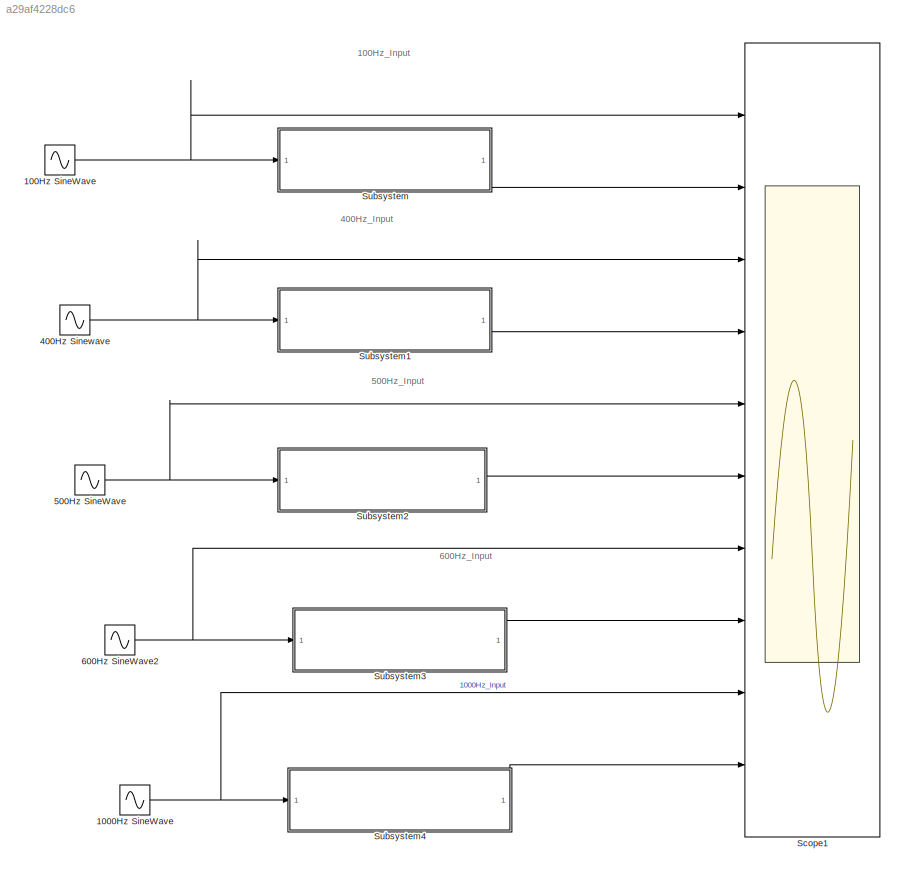
MODEL slx_a29af4228dc6
KIND model
CONFIG AbsTol = auto
CONFIG EnableMultiTasking = off
CONFIG FixedStep = auto
CONFIG MaxStep = auto
CONFIG MinStep = auto
CONFIG RelTol = 1e-3
CONFIG SampleTimeConstraint = Unconstrained
CONFIG SolverName = VariableStepAuto
CONFIG StartTime = 0.0
CONFIG StopTime = 0.05
BLOCK [Sin] 1000Hz SineWave
  Frequency = 2*pi*1000
  Ports = [0, 1]
  SampleTime = 0
BLOCK [Sin] 100Hz SineWave
  Frequency = 2*pi*100
  Ports = [0, 1]
  SampleTime = 0
BLOCK [Sin] 400Hz Sinewave
  Frequency = 2*pi*400
  Ports = [0, 1]
  SampleTime = 0
BLOCK [Sin] 500Hz SineWave
  Frequency = 2*pi*500
  Ports = [0, 1]
  SampleTime = 0
BLOCK [Sin] 600Hz SineWave2
  Frequency = 2*pi*600
  Ports = [0, 1]
  SampleTime = 0
BLOCK [Scope] Scope1
  Floating = off
  NumInputPorts = 10
  Ports = [10]
  ScopeSpecificationString = Simulink.scopes.TimeScopeBlockCfg('CurrentConfiguration', extmgr.ConfigurationSet(extmgr.Configuration('Core','General UI',true,'DisplayFullSourceName',true),extmgr.Configuration('Core','Source UI',true),extmgr.Configuration('Sources','WiredSimulink',true),extmgr.Configuration('Visuals','Time Domain',true,'SerializedDisplays',{struct('MinYLimReal','-1.24992','MaxYLimReal','1.24992','YLabelReal',''...<+8995ch>
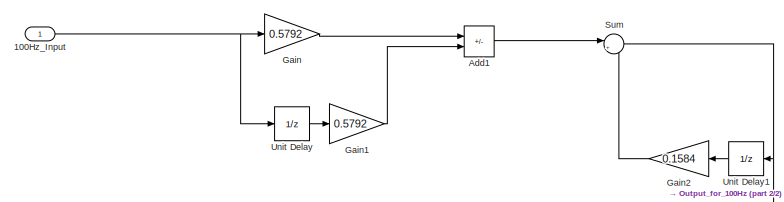
[diagram: Subsystem - part 1/2, top left region]
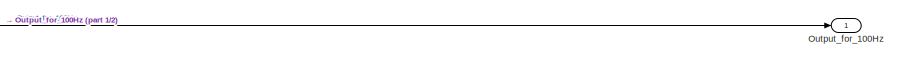
[diagram: Subsystem - part 2/2, bottom right region]
BLOCK [SubSystem] Subsystem
  Ports = [1, 1]
  RequestExecContextInheritance = off
BLOCK [Inport] Subsystem/100Hz_Input
BLOCK [Sum] Subsystem/Add1
  IconShape = rectangular
  Inputs = +-
  Ports = [2, 1]
BLOCK [Gain] Subsystem/Gain
  Gain = 0.5792
BLOCK [Gain] Subsystem/Gain1
  Gain = 0.5792
BLOCK [Gain] Subsystem/Gain2
  Gain = 0.1584
  NameLocation = top
BLOCK [Outport] Subsystem/Output_for_100Hz
BLOCK [Sum] Subsystem/Sum
  Inputs = |++
  Ports = [2, 1]
BLOCK [UnitDelay] Subsystem/Unit Delay
  HasFrameUpgradeWarning = on
  SampleTime = -1
BLOCK [UnitDelay] Subsystem/Unit Delay1
  HasFrameUpgradeWarning = on
  NameLocation = top
  SampleTime = -1
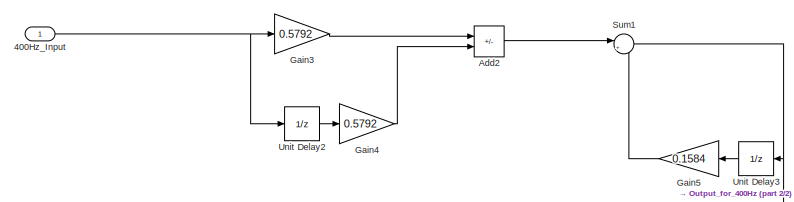
[diagram: Subsystem1 - part 1/2, middle left region]
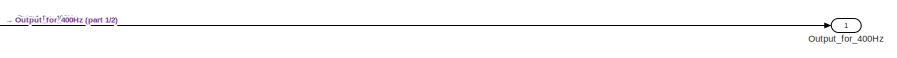
[diagram: Subsystem1 - part 2/2, bottom right region]
BLOCK [SubSystem] Subsystem1
  Ports = [1, 1]
  RequestExecContextInheritance = off
BLOCK [Inport] Subsystem1/400Hz_Input
BLOCK [Sum] Subsystem1/Add2
  IconShape = rectangular
  Inputs = +-
  Ports = [2, 1]
BLOCK [Gain] Subsystem1/Gain3
  Gain = 0.5792
BLOCK [Gain] Subsystem1/Gain4
  Gain = 0.5792
BLOCK [Gain] Subsystem1/Gain5
  Gain = 0.1584
  NameLocation = top
BLOCK [Outport] Subsystem1/Output_for_400Hz
BLOCK [Sum] Subsystem1/Sum1
  Inputs = |++
  Ports = [2, 1]
BLOCK [UnitDelay] Subsystem1/Unit Delay2
  HasFrameUpgradeWarning = on
  SampleTime = -1
BLOCK [UnitDelay] Subsystem1/Unit Delay3
  HasFrameUpgradeWarning = on
  NameLocation = top
  SampleTime = -1
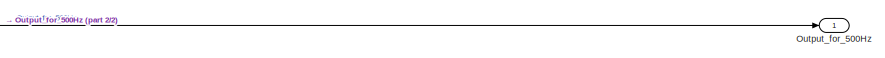
[diagram: Subsystem2 - part 1/2, top right region]
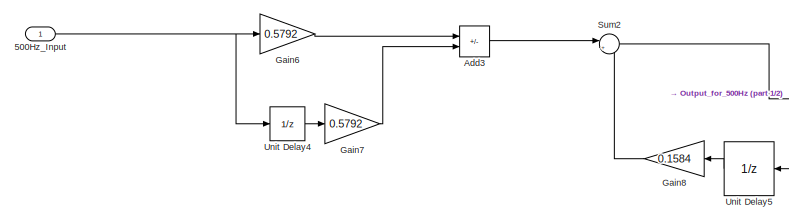
[diagram: Subsystem2 - part 2/2, left side, full height]
BLOCK [SubSystem] Subsystem2
  Ports = [1, 1]
  RequestExecContextInheritance = off
BLOCK [Inport] Subsystem2/500Hz_Input
BLOCK [Sum] Subsystem2/Add3
  IconShape = rectangular
  Inputs = +-
  Ports = [2, 1]
BLOCK [Gain] Subsystem2/Gain6
  Gain = 0.5792
BLOCK [Gain] Subsystem2/Gain7
  Gain = 0.5792
BLOCK [Gain] Subsystem2/Gain8
  Gain = 0.1584
  NameLocation = top
BLOCK [Outport] Subsystem2/Output_for_500Hz
BLOCK [Sum] Subsystem2/Sum2
  Inputs = |++
  Ports = [2, 1]
BLOCK [UnitDelay] Subsystem2/Unit Delay4
  HasFrameUpgradeWarning = on
  SampleTime = -1
BLOCK [UnitDelay] Subsystem2/Unit Delay5
  HasFrameUpgradeWarning = on
  NameLocation = top
  SampleTime = -1
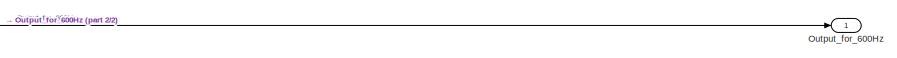
[diagram: Subsystem3 - part 1/2, top right region]
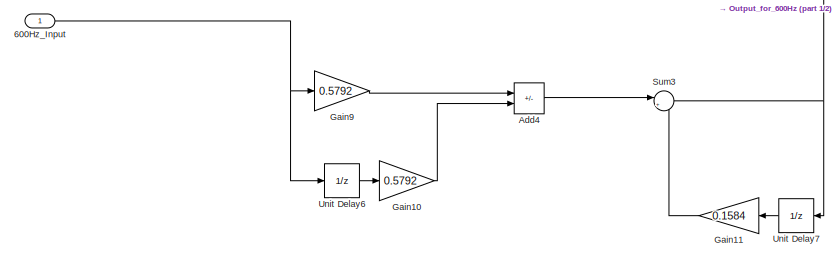
[diagram: Subsystem3 - part 2/2, bottom left region]
BLOCK [SubSystem] Subsystem3
  Ports = [1, 1]
  RequestExecContextInheritance = off
BLOCK [Inport] Subsystem3/600Hz_Input
BLOCK [Sum] Subsystem3/Add4
  IconShape = rectangular
  Inputs = +-
  Ports = [2, 1]
BLOCK [Gain] Subsystem3/Gain10
  Gain = 0.5792
BLOCK [Gain] Subsystem3/Gain11
  Gain = 0.1584
  NameLocation = top
BLOCK [Gain] Subsystem3/Gain9
  Gain = 0.5792
BLOCK [Outport] Subsystem3/Output_for_600Hz
BLOCK [Sum] Subsystem3/Sum3
  Inputs = |++
  Ports = [2, 1]
BLOCK [UnitDelay] Subsystem3/Unit Delay6
  HasFrameUpgradeWarning = on
  SampleTime = -1
BLOCK [UnitDelay] Subsystem3/Unit Delay7
  HasFrameUpgradeWarning = on
  NameLocation = top
  SampleTime = -1
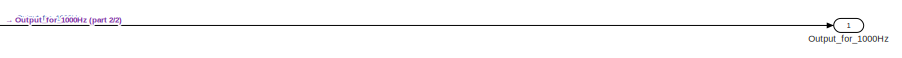
[diagram: Subsystem4 - part 1/2, top right region]
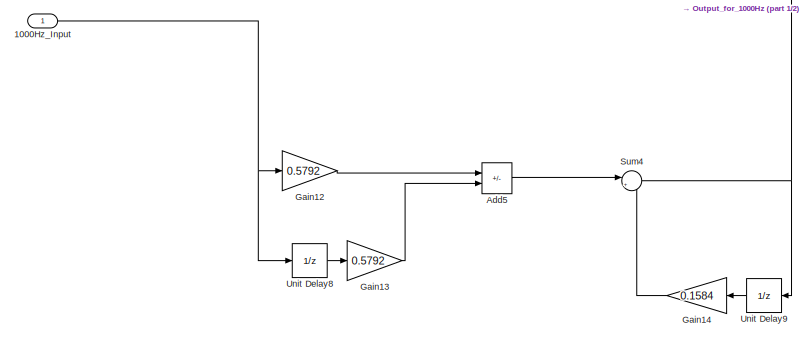
[diagram: Subsystem4 - part 2/2, bottom left region]
BLOCK [SubSystem] Subsystem4
  Ports = [1, 1]
  RequestExecContextInheritance = off
BLOCK [Inport] Subsystem4/1000Hz_Input
BLOCK [Sum] Subsystem4/Add5
  IconShape = rectangular
  Inputs = +-
  Ports = [2, 1]
BLOCK [Gain] Subsystem4/Gain12
  Gain = 0.5792
BLOCK [Gain] Subsystem4/Gain13
  Gain = 0.5792
BLOCK [Gain] Subsystem4/Gain14
  Gain = 0.1584
  NameLocation = top
BLOCK [Outport] Subsystem4/Output_for_1000Hz
BLOCK [Sum] Subsystem4/Sum4
  Inputs = |++
  Ports = [2, 1]
BLOCK [UnitDelay] Subsystem4/Unit Delay8
  HasFrameUpgradeWarning = on
  SampleTime = -1
BLOCK [UnitDelay] Subsystem4/Unit Delay9
  HasFrameUpgradeWarning = on
  NameLocation = top
  SampleTime = -1
ANNOTATION (root): 100Hz_Input
ANNOTATION (root): 400Hz_Input
ANNOTATION (root): 500Hz_Input
ANNOTATION (root): 600Hz_Input
NET 1000Hz SineWave:1 -> Scope1:9, Subsystem4:1
NET 100Hz SineWave:1 -> Scope1:1, Subsystem:1
NET 400Hz Sinewave:1 -> Scope1:3, Subsystem1:1
NET 500Hz SineWave:1 -> Scope1:5, Subsystem2:1
NET 600Hz SineWave2:1 -> Scope1:7, Subsystem3:1
NET Subsystem/100Hz_Input:1 -> Subsystem/Gain:1, Subsystem/Unit Delay:1
LINE Subsystem/Add1:1 -> Subsystem/Sum:1
LINE Subsystem/Gain1:1 -> Subsystem/Add1:2
LINE Subsystem/Gain2:1 -> Subsystem/Sum:2
LINE Subsystem/Gain:1 -> Subsystem/Add1:1
NET Subsystem/Sum:1 -> Subsystem/Output_for_100Hz:1, Subsystem/Unit Delay1:1
LINE Subsystem/Unit Delay1:1 -> Subsystem/Gain2:1
LINE Subsystem/Unit Delay:1 -> Subsystem/Gain1:1
NET Subsystem1/400Hz_Input:1 -> Subsystem1/Gain3:1, Subsystem1/Unit Delay2:1
LINE Subsystem1/Add2:1 -> Subsystem1/Sum1:1
LINE Subsystem1/Gain3:1 -> Subsystem1/Add2:1
LINE Subsystem1/Gain4:1 -> Subsystem1/Add2:2
LINE Subsystem1/Gain5:1 -> Subsystem1/Sum1:2
NET Subsystem1/Sum1:1 -> Subsystem1/Output_for_400Hz:1, Subsystem1/Unit Delay3:1
LINE Subsystem1/Unit Delay2:1 -> Subsystem1/Gain4:1
LINE Subsystem1/Unit Delay3:1 -> Subsystem1/Gain5:1
LINE Subsystem1:1 -> Scope1:4
NET Subsystem2/500Hz_Input:1 -> Subsystem2/Gain6:1, Subsystem2/Unit Delay4:1
LINE Subsystem2/Add3:1 -> Subsystem2/Sum2:1
LINE Subsystem2/Gain6:1 -> Subsystem2/Add3:1
LINE Subsystem2/Gain7:1 -> Subsystem2/Add3:2
LINE Subsystem2/Gain8:1 -> Subsystem2/Sum2:2
NET Subsystem2/Sum2:1 -> Subsystem2/Output_for_500Hz:1, Subsystem2/Unit Delay5:1
LINE Subsystem2/Unit Delay4:1 -> Subsystem2/Gain7:1
LINE Subsystem2/Unit Delay5:1 -> Subsystem2/Gain8:1
LINE Subsystem2:1 -> Scope1:6
NET Subsystem3/600Hz_Input:1 -> Subsystem3/Gain9:1, Subsystem3/Unit Delay6:1
LINE Subsystem3/Add4:1 -> Subsystem3/Sum3:1
LINE Subsystem3/Gain10:1 -> Subsystem3/Add4:2
LINE Subsystem3/Gain11:1 -> Subsystem3/Sum3:2
LINE Subsystem3/Gain9:1 -> Subsystem3/Add4:1
NET Subsystem3/Sum3:1 -> Subsystem3/Output_for_600Hz:1, Subsystem3/Unit Delay7:1
LINE Subsystem3/Unit Delay6:1 -> Subsystem3/Gain10:1
LINE Subsystem3/Unit Delay7:1 -> Subsystem3/Gain11:1
LINE Subsystem3:1 -> Scope1:8
NET Subsystem4/1000Hz_Input:1 -> Subsystem4/Gain12:1, Subsystem4/Unit Delay8:1
LINE Subsystem4/Add5:1 -> Subsystem4/Sum4:1
LINE Subsystem4/Gain12:1 -> Subsystem4/Add5:1
LINE Subsystem4/Gain13:1 -> Subsystem4/Add5:2
LINE Subsystem4/Gain14:1 -> Subsystem4/Sum4:2
NET Subsystem4/Sum4:1 -> Subsystem4/Output_for_1000Hz:1, Subsystem4/Unit Delay9:1
LINE Subsystem4/Unit Delay8:1 -> Subsystem4/Gain13:1
LINE Subsystem4/Unit Delay9:1 -> Subsystem4/Gain14:1
LINE Subsystem4:1 -> Scope1:10
LINE Subsystem:1 -> Scope1:2
note: NET lines group one-source signal fan-out (src -> all destinations, sorted); 1:1 wires keep LINE
